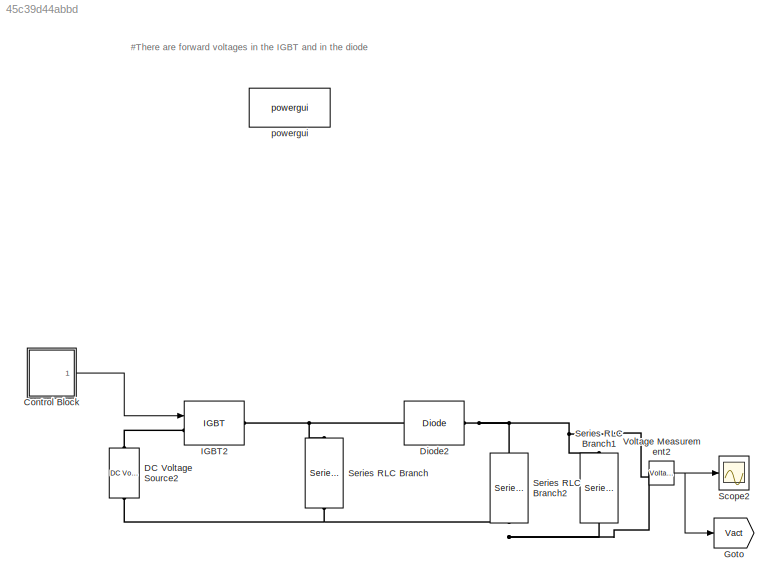
MODEL slx_45c39d44abbd
KIND model
CONFIG AbsTol = auto
CONFIG EnableMultiTasking = off
CONFIG FixedStep = auto
CONFIG MaxStep = auto
CONFIG MinStep = auto
CONFIG RelTol = 1e-3
CONFIG SampleTimeConstraint = Unconstrained
CONFIG SolverName = VariableStepAuto
CONFIG StartTime = 0.0
CONFIG StopTime = 10
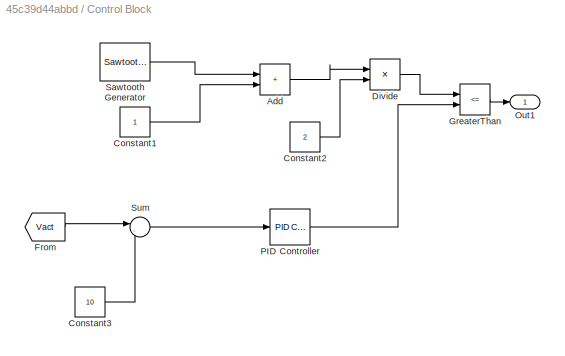
BLOCK [SubSystem] Control Block
  Ports = [0, 1]
  RequestExecContextInheritance = off
BLOCK [Sum] Control Block/Add
  IconShape = rectangular
  Ports = [2, 1]
BLOCK [Constant] Control Block/Constant1
BLOCK [Constant] Control Block/Constant2
  Value = 2
BLOCK [Constant] Control Block/Constant3
  Value = 10
BLOCK [Product] Control Block/Divide
  Inputs = */
  Ports = [2, 1]
BLOCK [From] Control Block/From
  GotoTag = Vact
  TagVisibility = global
BLOCK [RelationalOperator] Control Block/GreaterThan
  InputSameDT = off
  Operator = <=
  OutDataTypeStr = boolean
  Ports = [2, 1]
  RndMeth = Simplest
BLOCK [Outport] Control Block/Out1
BLOCK [Reference] Control Block/PID Controller  REF=pid_lib/PID Controller
  Ports = [1, 1]
  SourceBlock = pid_lib/PID Controller
  SourceProductBaseCode = SL
  SourceType = PID 1dof
BLOCK [Reference] Control Block/Sawtooth Generator  REF=spsSawtoothGeneratorLib/Sawtooth
Generator
  Ports = [0, 1]
  SourceBlock = spsSawtoothGeneratorLib/Sawtooth\nGenerator
  SourceProductBaseCode = PS
  SourceType = Sawtooth Generator
BLOCK [Sum] Control Block/Sum
  Inputs = |-+
  Ports = [2, 1]
BLOCK [Reference] DC Voltage Source2  REF=spsDCVoltageSourceLib/DC Voltage Source
  Ports = [0, 0, 0, 0, 0, 1, 1]
  SourceBlock = spsDCVoltageSourceLib/DC Voltage Source
  SourceProductBaseCode = PS
  SourceType = DC Voltage Source
BLOCK [Reference] Diode2  REF=spsDiodeLib/Diode
  Ports = [0, 0, 0, 0, 0, 1, 1]
  SourceBlock = spsDiodeLib/Diode
  SourceProductBaseCode = PS
  SourceType = Diode
BLOCK [Goto] Goto
  GotoTag = Vact
  TagVisibility = global
BLOCK [Reference] IGBT2  REF=spsIGBTLib/IGBT
  Ports = [1, 0, 0, 0, 0, 1, 1]
  SourceBlock = spsIGBTLib/IGBT
  SourceProductBaseCode = PS
  SourceType = IGBT
BLOCK [Scope] Scope2
  Floating = off
  NumInputPorts = 1
  Ports = [1]
  ScopeSpecificationString = Simulink.scopes.TimeScopeBlockCfg('CurrentConfiguration', extmgr.ConfigurationSet(extmgr.Configuration('Core','General UI',true),extmgr.Configuration('Core','Source UI',true),extmgr.Configuration('Sources','WiredSimulink',true),extmgr.Configuration('Visuals','Time Domain',true,'SerializedDisplays',{struct('MinYLimReal','-1.26821','MaxYLimReal','11.41306','YLabelReal','','MinYLimMag','0.00000','Max...<+1493ch>
BLOCK [Reference] Series RLC Branch  REF=spsSeriesRLCBranchLib/Series RLC Branch
  NameLocation = left
  Ports = [0, 0, 0, 0, 0, 1, 1]
  SourceBlock = spsSeriesRLCBranchLib/Series RLC Branch
  SourceProductBaseCode = PS
  SourceType = Series RLC Branch
BLOCK [Reference] Series RLC Branch1  REF=spsSeriesRLCBranchLib/Series RLC Branch
  NameLocation = right
  Ports = [0, 0, 0, 0, 0, 1, 1]
  SourceBlock = spsSeriesRLCBranchLib/Series RLC Branch
  SourceProductBaseCode = PS
  SourceType = Series RLC Branch
BLOCK [Reference] Series RLC Branch2  REF=spsSeriesRLCBranchLib/Series RLC Branch
  NameLocation = right
  Ports = [0, 0, 0, 0, 0, 1, 1]
  SourceBlock = spsSeriesRLCBranchLib/Series RLC Branch
  SourceProductBaseCode = PS
  SourceType = Series RLC Branch
BLOCK [Reference] Voltage Measurement2  REF=spsVoltageMeasurementLib/Voltage Measurement
  Ports = [0, 1, 0, 0, 0, 2]
  SourceBlock = spsVoltageMeasurementLib/Voltage Measurement
  SourceProductBaseCode = PS
  SourceType = Voltage Measurement
  UserDataPersistent = on
BLOCK [Reference] powergui  REF=spspowerguiLib/powergui
  Ports = []
  Priority = 1
  SourceBlock = spspowerguiLib/powergui
  SourceProductBaseCode = PS
  SourceType = PSB option menu block
ANNOTATION (root): #There are forward voltages in the IGBT and in the diode
LINE Control Block/Add:1 -> Control Block/Divide:1
LINE Control Block/Constant1:1 -> Control Block/Add:2
LINE Control Block/Constant2:1 -> Control Block/Divide:2
LINE Control Block/Constant3:1 -> Control Block/Sum:2
LINE Control Block/Divide:1 -> Control Block/GreaterThan:1
LINE Control Block/From:1 -> Control Block/Sum:1
LINE Control Block/GreaterThan:1 -> Control Block/Out1:1
LINE Control Block/PID Controller:1 -> Control Block/GreaterThan:2
LINE Control Block/Sawtooth Generator:1 -> Control Block/Add:1
LINE Control Block/Sum:1 -> Control Block/PID Controller:1
LINE Control Block:1 -> IGBT2:1
NET Voltage Measurement2:1 -> Goto:1, Scope2:1
PNET net1: DC Voltage Source2:LConn1 -- Series RLC Branch1:LConn1 -- Series RLC Branch2:LConn1 -- Series RLC Branch:RConn1 -- Voltage Measurement2:LConn1
PLINE DC Voltage Source2:RConn1 -- IGBT2:LConn1
PNET net2: Diode2:LConn1 -- Series RLC Branch1:RConn1 -- Series RLC Branch2:RConn1 -- Voltage Measurement2:LConn2
PNET net3: Diode2:RConn1 -- IGBT2:RConn1 -- Series RLC Branch:LConn1
note: NET lines group one-source signal fan-out (src -> all destinations, sorted); 1:1 wires keep LINE; PNET lines group multi-terminal physical nets as a canonical sorted terminal list (undirected conserving connections); 2-terminal nets keep the pairwise PLINE form
